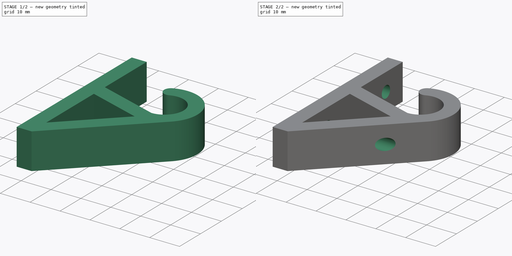
[diagram: build sequence overview — one tinted view per stage of 2, left to right]
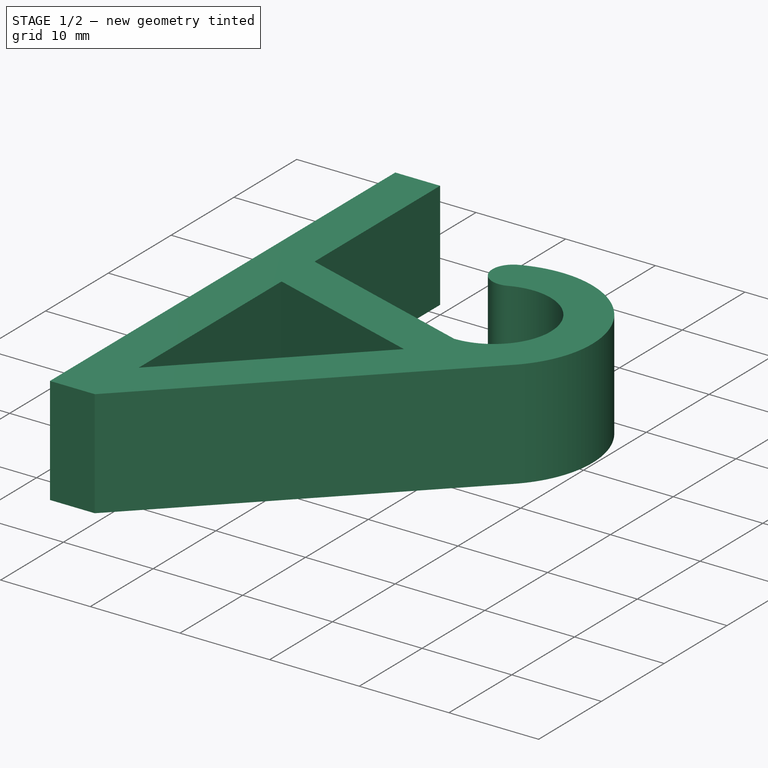
[diagram: stage 1 of 2 — iso view after this stage's code; geometry added in this stage tinted green]
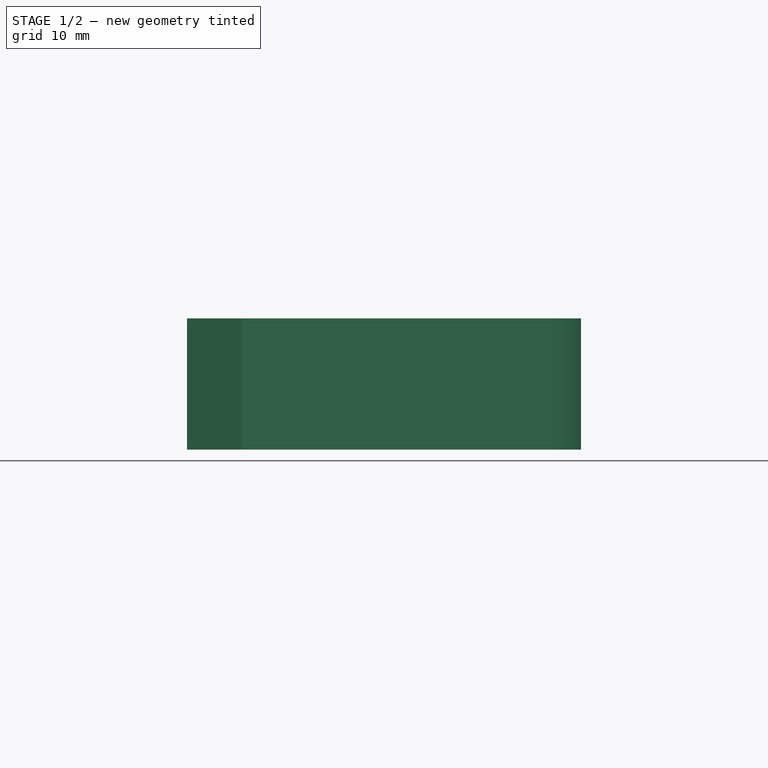
[diagram: stage 1 of 2 — front view after this stage's code; geometry added in this stage tinted green]
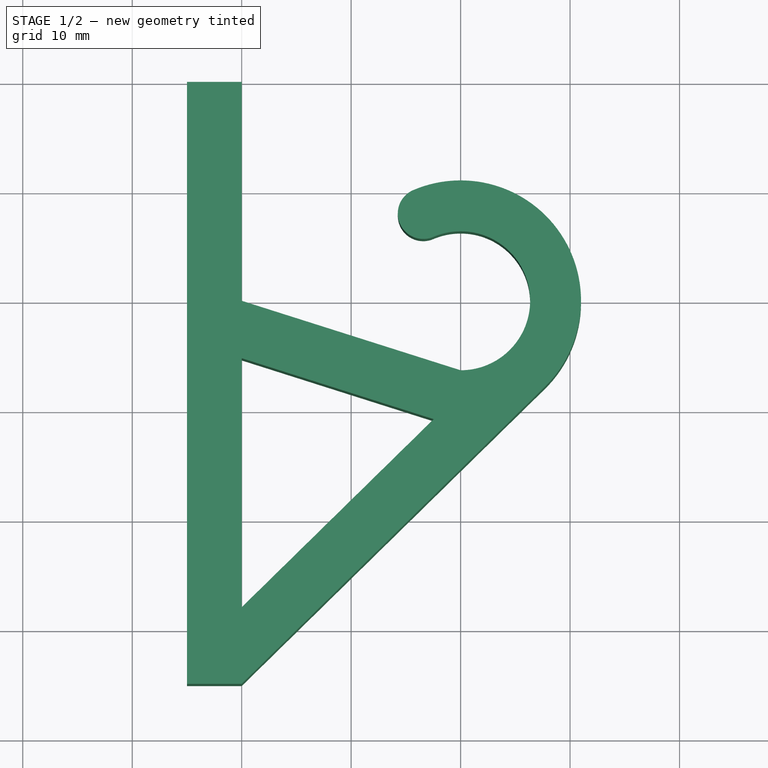
[diagram: stage 1 of 2 — top view after this stage's code; geometry added in this stage tinted green]
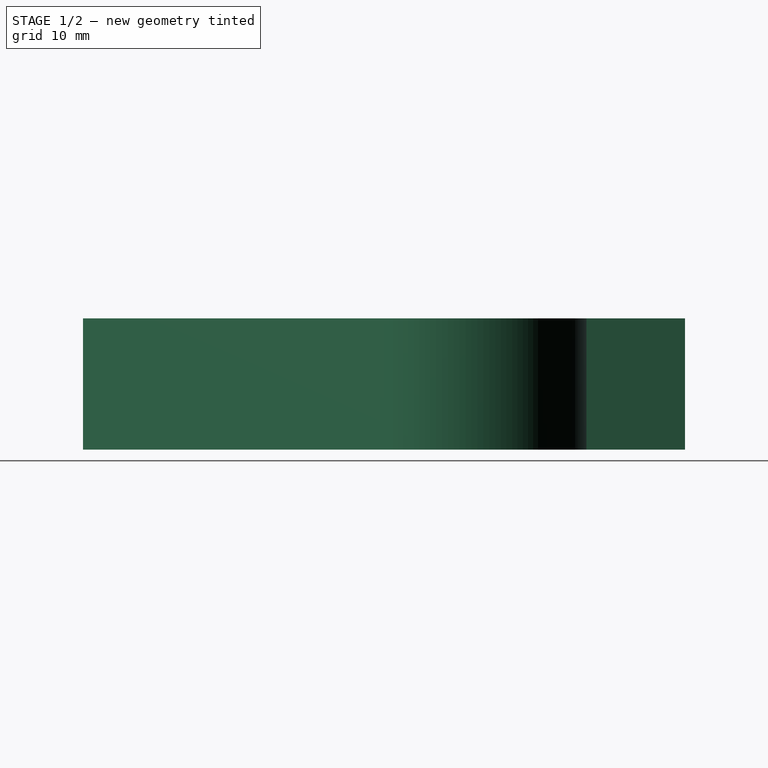
[diagram: stage 1 of 2 — right view after this stage's code; geometry added in this stage tinted green]
FCSTD DOCUMENT  (FreeCAD 0.16R)
Label: BabyGate2
License: All rights reserved
LicenseURL: http://en.wikipedia.org/wiki/All_rights_reserved
objects: Sketcher::SketchObject×3, PartDesign::Pad×1, PartDesign::Pocket×1
note: 7 computed .brp shape members not serialized (recipe doc carries the construction recipe); baked Part::Feature solids carry a one-line shape summary decoded from their .brp

FEATURE [Sketcher::SketchObject] Sketch
FEATURE [Sketcher::SketchObject] Sketch001
  sketch-geometry (12):
    g0: ArcOfCircle CenterX=0 CenterY=0 CenterZ=0 NormalX=0 NormalY=0 NormalZ=1 Radius=6.35 StartAngle=4.71239 EndAngle=8.25864
    g1: ArcOfCircle CenterX=0 CenterY=0 CenterZ=0 NormalX=0 NormalY=0 NormalZ=1 Radius=11 StartAngle=5.48766 EndAngle=8.25863
    g2: LineSegment StartX=7.69899 StartY=-7.85656 StartZ=0 EndX=-20 EndY=-35 EndZ=0
    g3: LineSegment StartX=0 StartY=-6.35 StartZ=0 EndX=-20 EndY=0 EndZ=0
    g4: LineSegment StartX=-20 StartY=0 StartZ=0 EndX=-20 EndY=20 EndZ=0
    g5: LineSegment StartX=-20 StartY=20 StartZ=0 EndX=-25 EndY=20 EndZ=0
    g6: LineSegment StartX=-25 StartY=20 StartZ=0 EndX=-25 EndY=-35 EndZ=0
    g7: LineSegment StartX=-25 StartY=-35 StartZ=0 EndX=-20 EndY=-35 EndZ=0
    g8: ArcOfCircle CenterX=-3.41534 CenterY=7.9744 CenterZ=0 NormalX=0 NormalY=0 NormalZ=1 Radius=2.325 StartAngle=1.97545 EndAngle=5.11704
    g9: LineSegment StartX=-20 StartY=-5.24597 StartZ=0 EndX=-20 EndY=-27.9995 EndZ=0
    g10: LineSegment StartX=-20 StartY=-27.9995 StartZ=0 EndX=-2.4628 EndY=-10.814 EndZ=0
    g11: LineSegment StartX=-2.4628 StartY=-10.814 StartZ=0 EndX=-20 EndY=-5.24597 EndZ=0
  constraints (37):
    c: Coincident(g0,g-1)
    c: PointOnObject(g0,g-2)
    c: Radius(g0) = 6.35
    c: DistanceX(g0,g-1) = 2.5
    c: Radius(g1) = 11
    c: Coincident(g1,g-1)
    c: Coincident(g2,g1)
    c: DistanceX(g3) = -20
    c: DistanceX(g2) = -20
    c: Coincident(g4,g3)
    c: Vertical(g4)
    c: Coincident(g4,g5)
    c: Coincident(g5,g6)
    c: Vertical(g6)
    c: Coincident(g6,g7)
    c: Horizontal(g5)
    c: Horizontal(g7)
    c: DistanceX(g5,g5) = 5
    c: PointOnObject(g3,g-1)
    c: Tangent(g8,g1)
    c: Coincident(g8,g1)
    c: Coincident(g0,g8)
    c: Coincident(g2,g7)
    c: Tangent(g2,g1)
    c: Vertical(g9)
    c: Coincident(g9,g10)
    c: Coincident(g10,g11)
    c: Parallel(g11,g3)
    c: Coincident(g11,g9)
    c: Distance(g9,g6) = 5
    c: Distance(g10,g2) = 5
    c: Parallel(g2,g10)
    c: Distance(g9,g3) = 5
    c: DistanceY(g5) = 20
    c: DistanceY(g6) = -35
    c: Coincident(g3,g0)
    c: Tangent(g0,g8)
FEATURE [PartDesign::Pad] Pad
  Length = 12
  Length2 = 100
  Sketch = -> Sketch001
  Type = 0
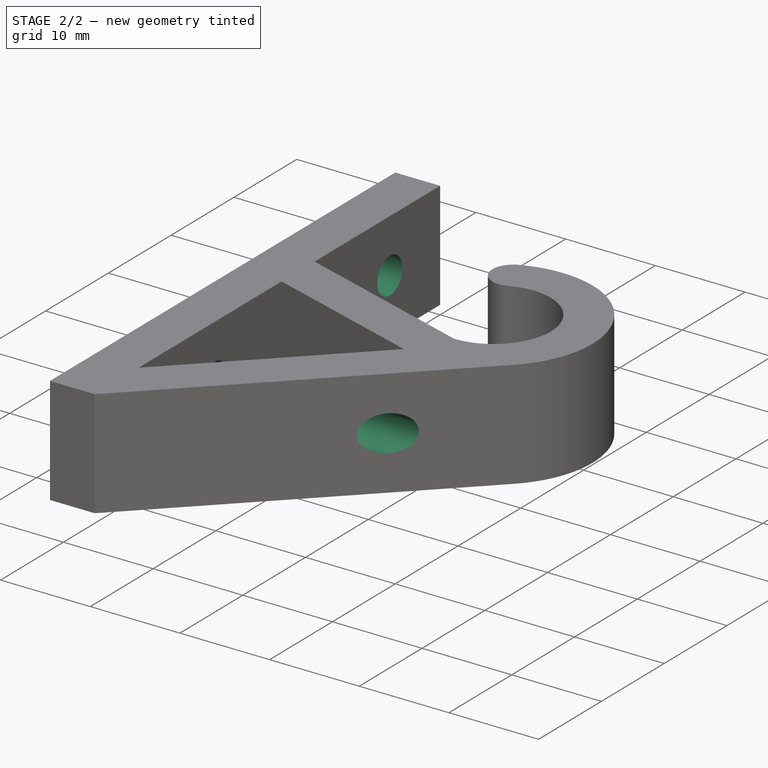
[diagram: stage 2 of 2 — iso view after this stage's code; geometry added in this stage tinted green]
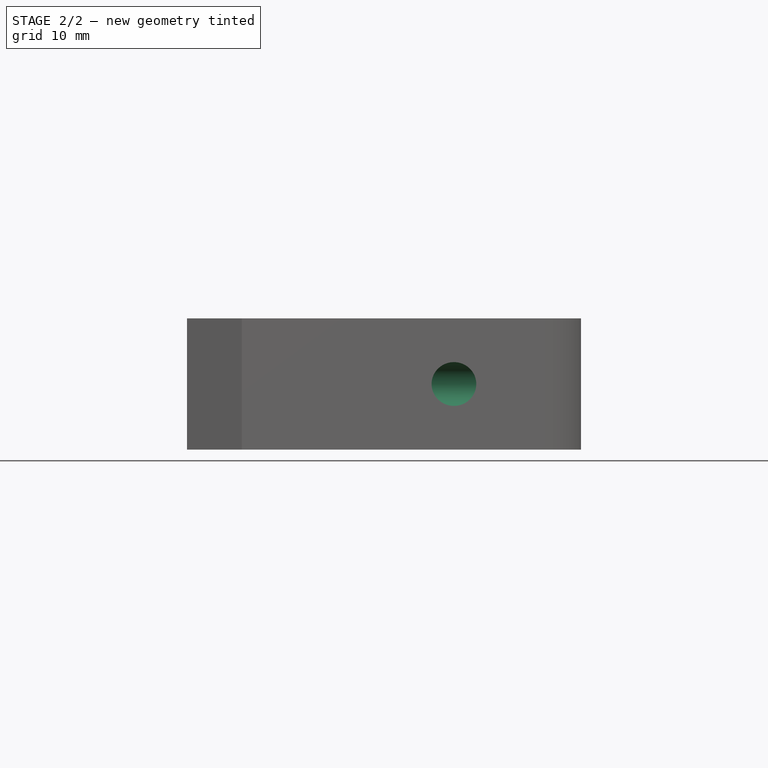
[diagram: stage 2 of 2 — front view after this stage's code; geometry added in this stage tinted green]
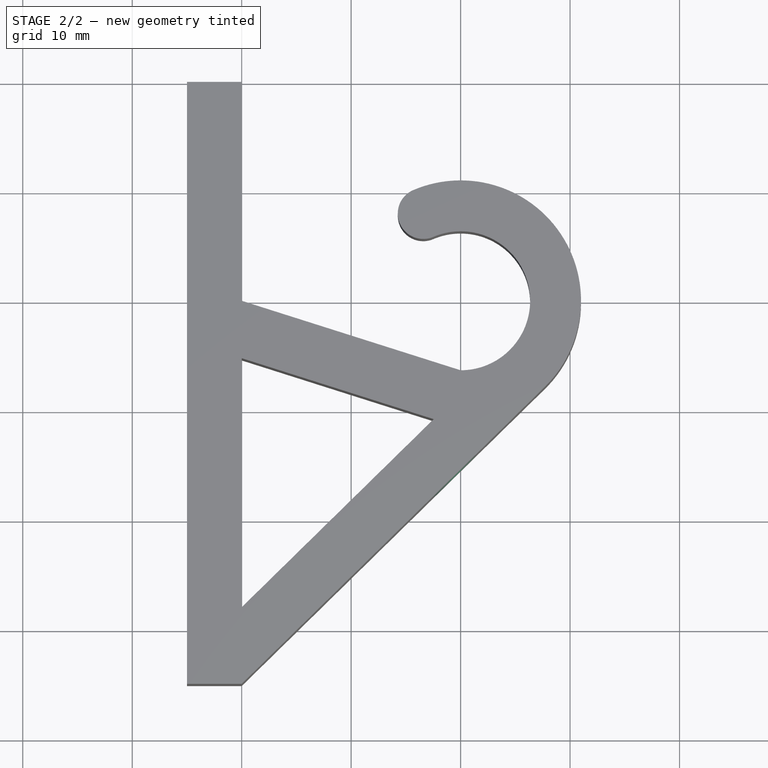
[diagram: stage 2 of 2 — top view after this stage's code; geometry added in this stage tinted green]
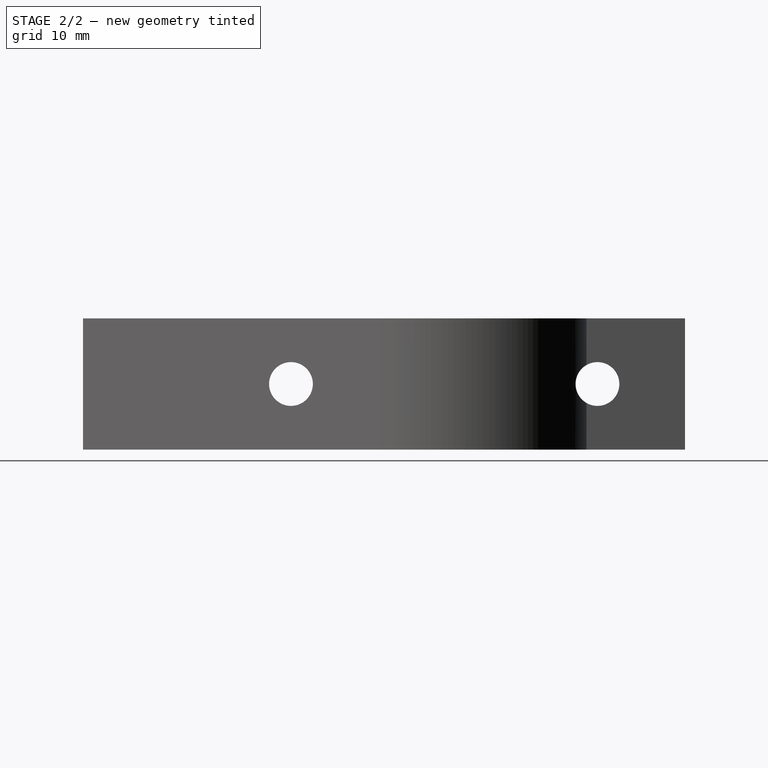
[diagram: stage 2 of 2 — right view after this stage's code; geometry added in this stage tinted green]
FEATURE [Sketcher::SketchObject] Sketch002
  ExternalGeometry = -> [Pad]
  Placement = pos=(-25,0,0) rot=(0.57735,-0.57735,-0.57735;2.0944rad)
  Support = -> Pad [Face7]
  sketch-geometry (2):
    g0: Circle CenterX=-12 CenterY=6 CenterZ=0 NormalX=0 NormalY=0 NormalZ=1 Radius=2
    g1: Circle CenterX=16 CenterY=6 CenterZ=0 NormalX=0 NormalY=0 NormalZ=1 Radius=2
  constraints (6):
    c: DistanceY(g0) = 6
    c: DistanceY(g1) = 6
    c: DistanceX(g0) = -12
    c: DistanceX(g1) = 16
    c: Radius(g1) = 2
    c: Radius(g0) = 2
FEATURE [PartDesign::Pocket] Pocket
  Length = 5
  Sketch = -> Sketch002
  Type = 1
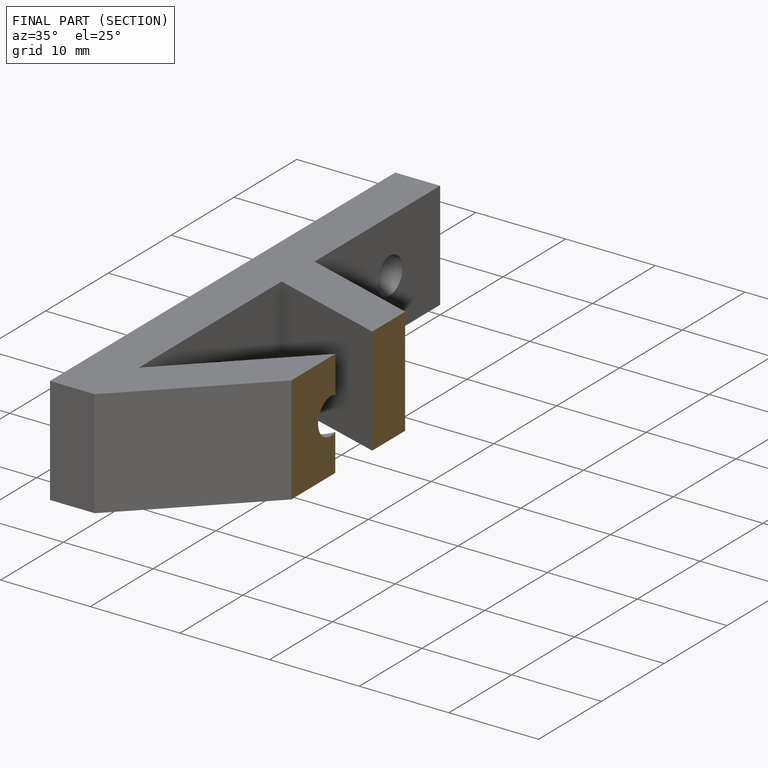
[diagram: finished part — half-section view (interior)]
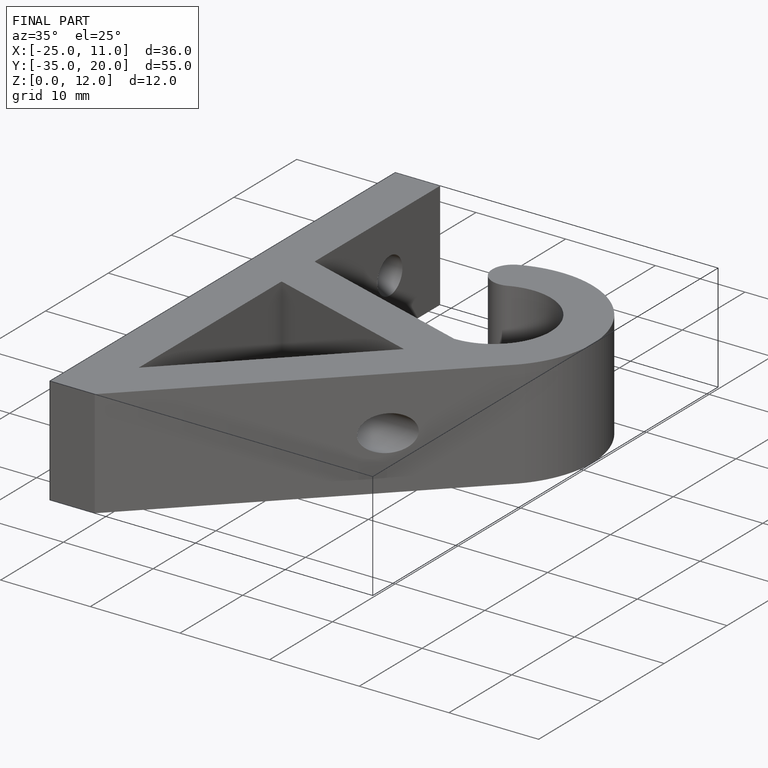
[diagram: finished part — iso view with bounding-box wireframe]
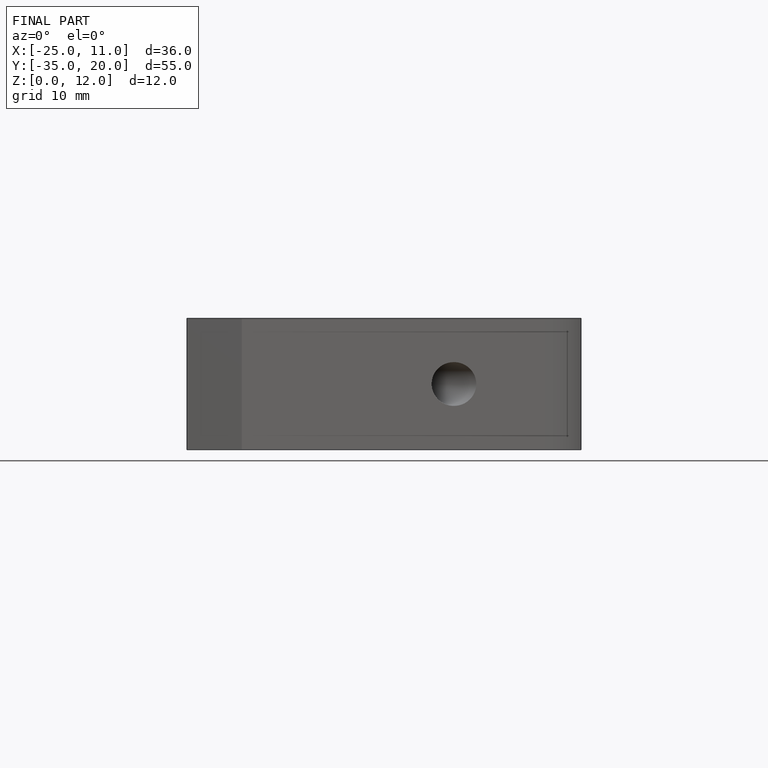
[diagram: finished part — front view with bounding-box wireframe]
